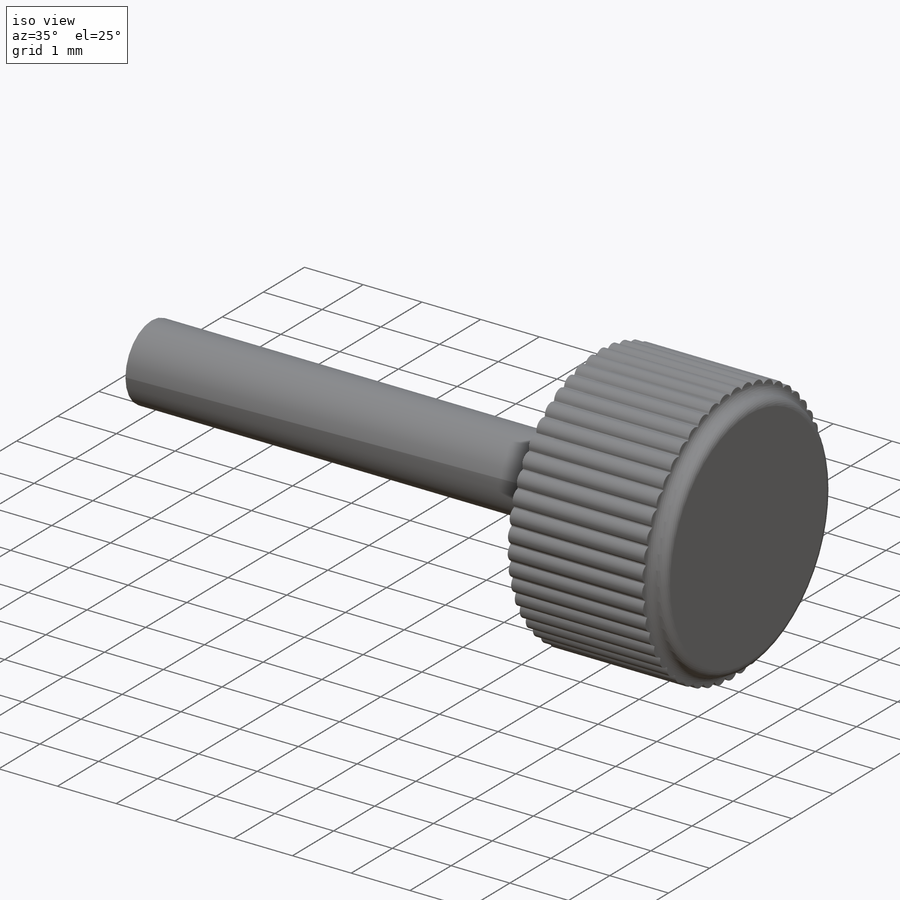
[diagram: iso view]
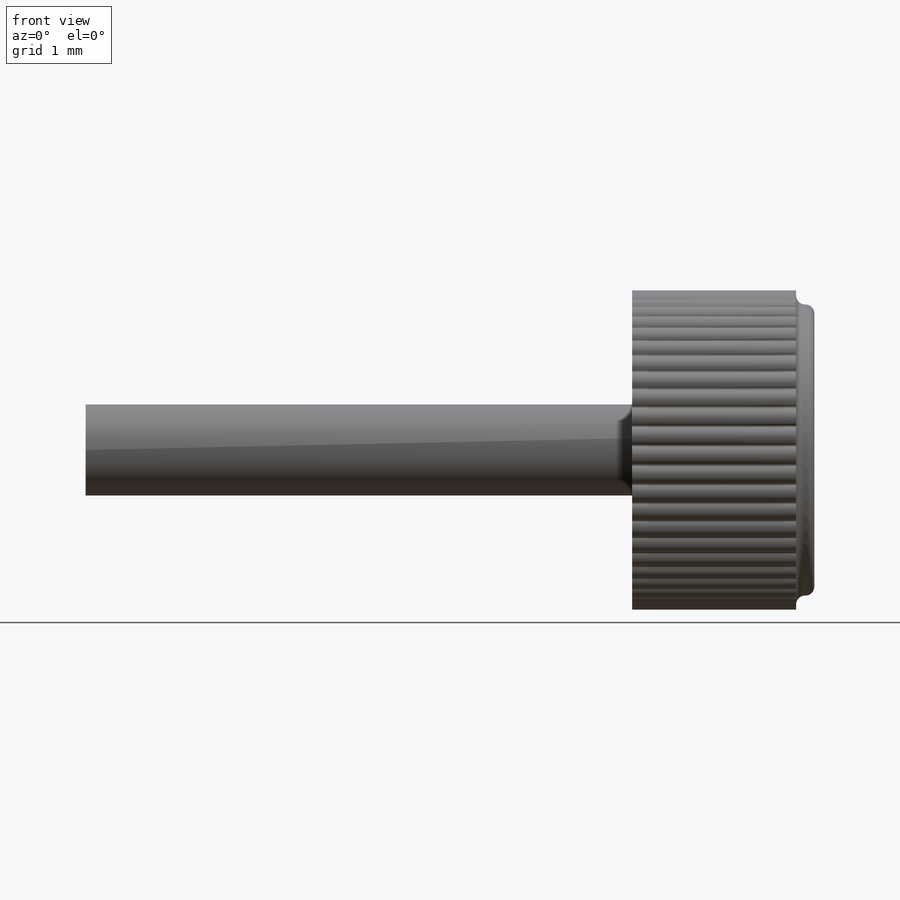
[diagram: front view]
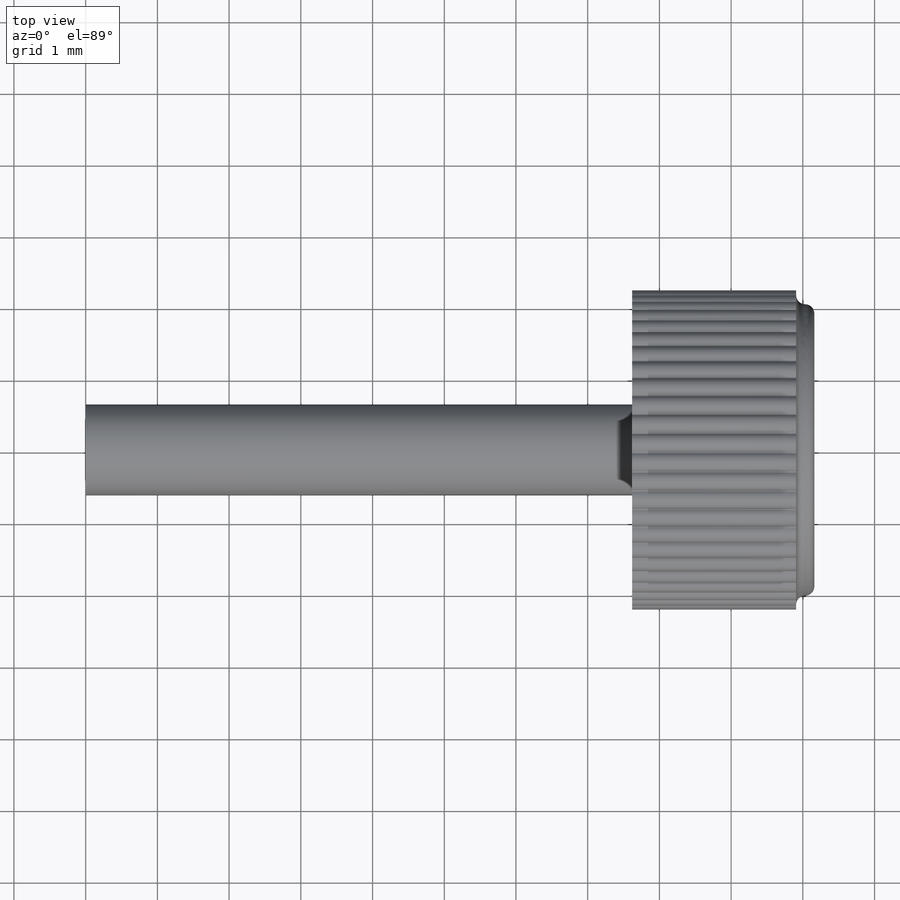
[diagram: top view]
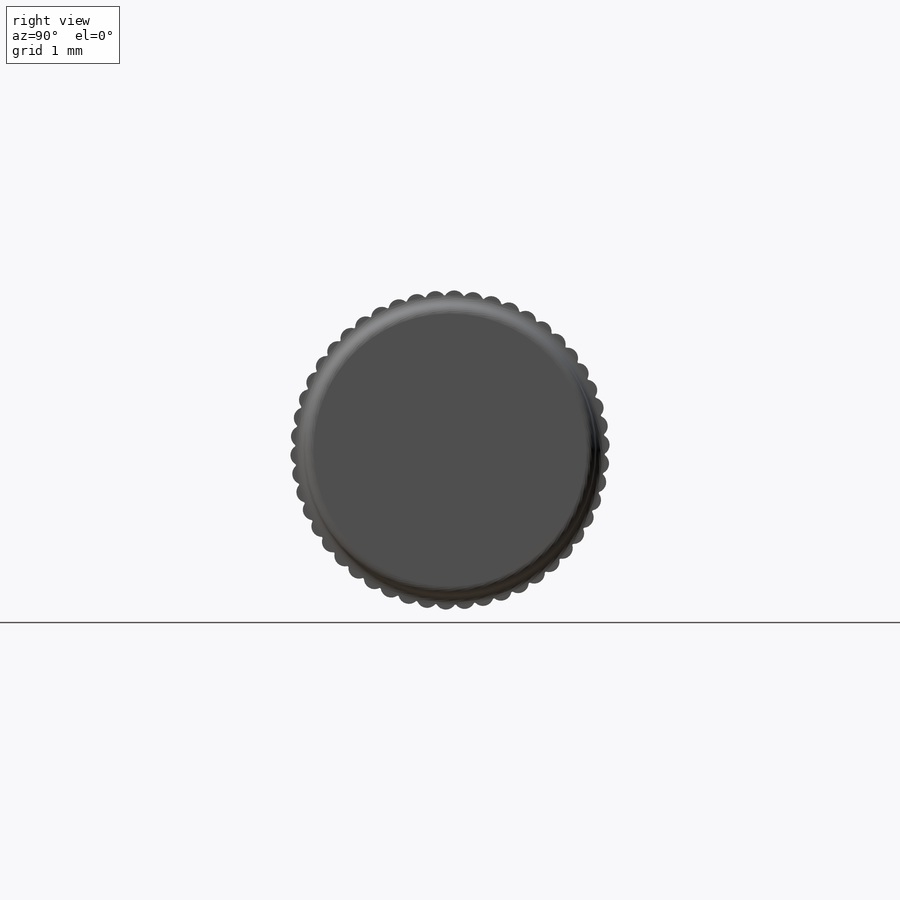
[diagram: right view]
SOLIDWORKS PART (.sldprt)
format: sldprt  version: not decoded by parser v0  size: 382,464 bytes
history: native  units: mm
features: sketch x3, extrude x3, material x1, plane x1, fillet x1 (+11 scaffold rows collapsed)
feature tree (20):
  scaffold x11  (default folders/planes/origin — collapsed)
  material  "Material <not specified>"
  sketch  "Sketch1"  dims[D1=1.27mm]
  extrude  "Extrude1"  Depth=7.62mm
  sketch  "Sketch2"  dims[D1=4.064mm]
  extrude  "Extrude2"  Depth=2.54mm
  plane  "Plane1"  Offset=9.906mm
  sketch  "Sketch3"  dims[D2=4.318mm D1=0.254mm D3=~0.017018mm]
  extrude  "Extrude6"  Depth=2.286mm
  fillet  "Fillet2"  Radius=0.127mm
decode coverage: 7 of 7 modeling features carry decoded parameters
note: ~ marks probable driven/reference dimensions
note: suppression state not decoded; provenance and decode notes live in map.json
